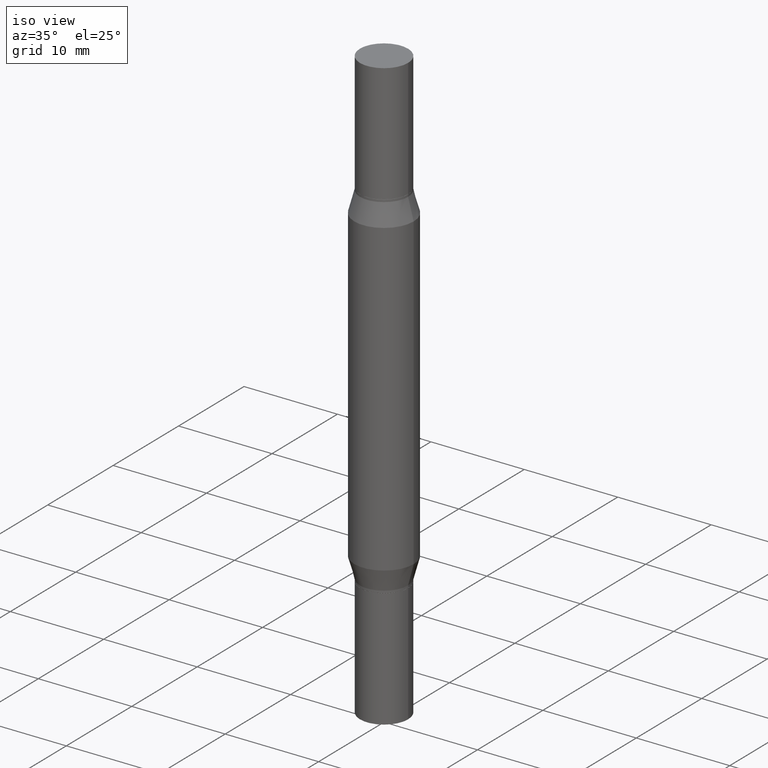
[diagram: clean part render]
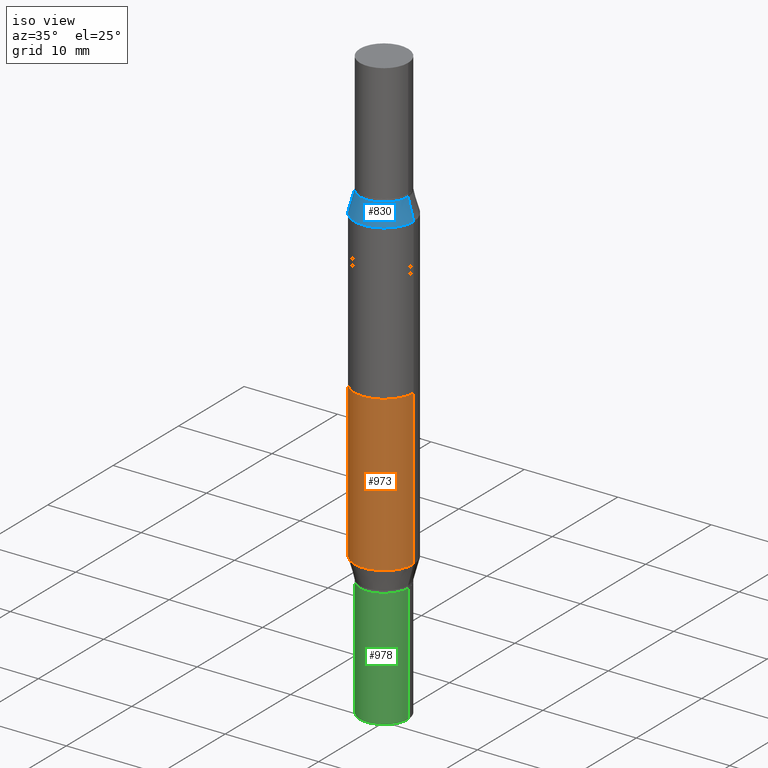
[diagram: same view with three faces highlighted in distinct colors, each labeled with its STEP entity id]
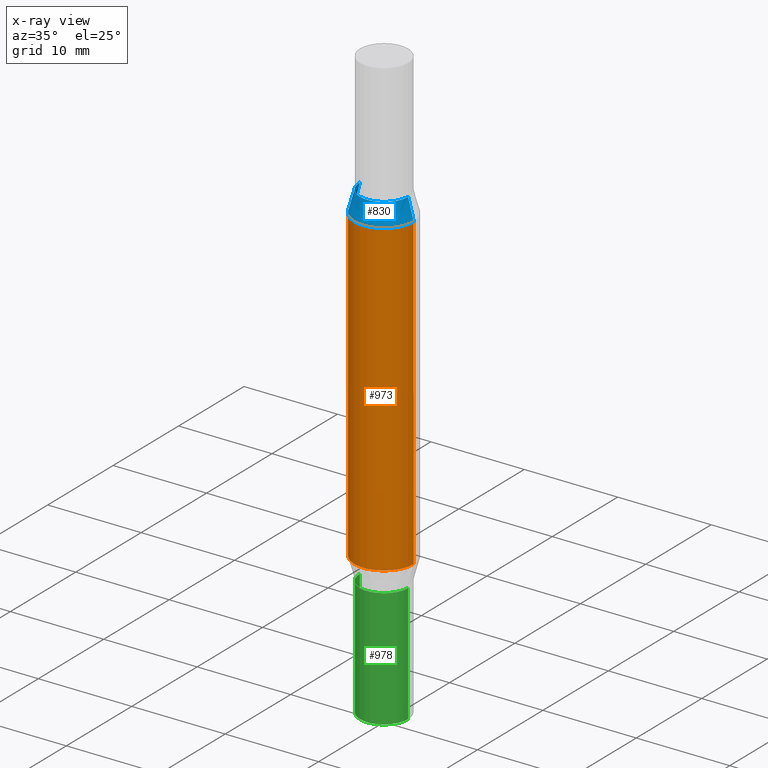
[diagram: x-ray of the same camera — body ghosted, the three highlighted faces saturated]
A machine part, iso view with three faces highlighted in distinct colors.
The next image is the same camera in x-ray (body ghosted, the three faces saturated) — at least one of them is partly hidden behind the body in this view.
Their STEP definitions:

[orange] entity #973 — the highlighted cylindrical surface (edge-blend (fillet) strip) has radius 3.175 mm, axis along (-0, -0, -1).
#2 = CARTESIAN_POINT ( 'NONE',  ( 0.1250000000000000000, -9.601978376966118441E-15, -2.499999999999999556 ) ) ;
#8 = DIRECTION ( 'NONE',  ( 1.000000000000000000, -6.982962677686262766E-15, 0.000000000000000000 ) ) ;
#10 = VECTOR ( 'NONE', #215, 39.37007874015748143 ) ;
#27 = AXIS2_PLACEMENT_3D ( 'NONE', #229, #835, #8 ) ;
#66 = DIRECTION ( 'NONE',  ( 1.000000000000000000, -6.982962677686266711E-15, 0.000000000000000000 ) ) ;
#95 = EDGE_CURVE ( 'NONE', #777, #134, #683, .T. ) ;
#134 = VERTEX_POINT ( 'NONE', #462 ) ;
#152 = AXIS2_PLACEMENT_3D ( 'NONE', #507, #735, #66 ) ;
#169 = DIRECTION ( 'NONE',  ( -2.445468806185136877E-29, -3.491805094961123683E-15, -1.000000000000000000 ) ) ;
#175 = EDGE_LOOP ( 'NONE', ( #351, #379, #371, #704 ) ) ;
#215 = DIRECTION ( 'NONE',  ( -2.445468806185136877E-29, -3.491805094961123683E-15, -1.000000000000000000 ) ) ;
#229 = CARTESIAN_POINT ( 'NONE',  ( 0.000000000000000000, -8.729108042255335103E-15, -2.499999999999999556 ) ) ;
#251 = LINE ( 'NONE', #322, #366 ) ;
#322 = CARTESIAN_POINT ( 'NONE',  ( -0.1250000000000000000, -7.871545792533893657E-15, -2.499999999999999556 ) ) ;
#324 = CIRCLE ( 'NONE', #670, 0.1250000000000000000 ) ;
#351 = ORIENTED_EDGE ( 'NONE', *, *, #95, .F. ) ;
#366 = VECTOR ( 'NONE', #169, 39.37007874015748143 ) ;
#371 = ORIENTED_EDGE ( 'NONE', *, *, #846, .T. ) ;
#379 = ORIENTED_EDGE ( 'NONE', *, *, #663, .T. ) ;
#425 = EDGE_CURVE ( 'NONE', #134, #561, #749, .T. ) ;
#462 = CARTESIAN_POINT ( 'NONE',  ( 0.1250000000000000000, -2.958877117868543782E-15, -0.5975165914374901410 ) ) ;
#507 = CARTESIAN_POINT ( 'NONE',  ( 4.652463829924389037E-29, -2.086006783157758077E-15, -0.5975165914374901410 ) ) ;
#518 = CYLINDRICAL_SURFACE ( 'NONE', #27, 0.1250000000000000000 ) ;
#530 = VERTEX_POINT ( 'NONE', #620 ) ;
#561 = VERTEX_POINT ( 'NONE', #752 ) ;
#578 = DIRECTION ( 'NONE',  ( -2.445468806185136597E-29, 3.491481338843145583E-15, 1.000000000000000000 ) ) ;
#620 = CARTESIAN_POINT ( 'NONE',  ( -0.1250000000000000000, -3.506789423832489448E-15, -1.902483408562509304 ) ) ;
#650 = DIRECTION ( 'NONE',  ( 1.000000000000000000, -6.982962677686270655E-15, 0.000000000000000000 ) ) ;
#657 = CARTESIAN_POINT ( 'NONE',  ( 4.652463829924389037E-29, -6.642485318454700807E-15, -1.902483408562509304 ) ) ;
#663 = EDGE_CURVE ( 'NONE', #777, #530, #251, .T. ) ;
#670 = AXIS2_PLACEMENT_3D ( 'NONE', #657, #578, #650 ) ;
#680 = FACE_OUTER_BOUND ( 'NONE', #175, .T. ) ;
#683 = CIRCLE ( 'NONE', #152, 0.1250000000000000000 ) ;
#704 = ORIENTED_EDGE ( 'NONE', *, *, #425, .F. ) ;
#735 = DIRECTION ( 'NONE',  ( 2.445468806185136597E-29, 3.491805094961124077E-15, 1.000000000000000000 ) ) ;
#749 = LINE ( 'NONE', #2, #10 ) ;
#752 = CARTESIAN_POINT ( 'NONE',  ( 0.1250000000000000000, -7.515355653165484935E-15, -1.902483408562509304 ) ) ;
#777 = VERTEX_POINT ( 'NONE', #945 ) ;
#835 = DIRECTION ( 'NONE',  ( -2.445468806185136597E-29, -3.491805094961124077E-15, -1.000000000000000000 ) ) ;
#846 = EDGE_CURVE ( 'NONE', #530, #561, #324, .T. ) ;
#945 = CARTESIAN_POINT ( 'NONE',  ( -0.1250000000000000000, -1.228444533436318603E-15, -0.5975165914374901410 ) ) ;
#973 = ADVANCED_FACE ( 'NONE', ( #680 ), #518, .T. ) ;

[blue] entity #830 — the highlighted conical surface has half-angle 15 deg.
#33 = DIRECTION ( 'NONE',  ( 2.445468806185136597E-29, 3.491805094961124077E-15, 1.000000000000000000 ) ) ;
#48 = CONICAL_SURFACE ( 'NONE', #305, 0.1015499999999997377, 0.2617993877991507401 ) ;
#63 = VECTOR ( 'NONE', #64, 39.37007874015748854 ) ;
#64 = DIRECTION ( 'NONE',  ( 0.2588190451025219607, -5.180148453816008779E-15, -0.9659258262890678681 ) ) ;
#93 = CARTESIAN_POINT ( 'NONE',  ( 0.1015499999999997377, -2.489535763201737721E-15, -0.5099999999999994538 ) ) ;
#130 = EDGE_CURVE ( 'NONE', #767, #396, #851, .T. ) ;
#167 = VERTEX_POINT ( 'NONE', #337 ) ;
#195 = CIRCLE ( 'NONE', #272, 0.1250000000000000000 ) ;
#216 = LINE ( 'NONE', #517, #63 ) ;
#217 = EDGE_CURVE ( 'NONE', #167, #423, #195, .T. ) ;
#234 = EDGE_CURVE ( 'NONE', #767, #167, #552, .T. ) ;
#237 = VECTOR ( 'NONE', #562, 39.37007874015748854 ) ;
#245 = DIRECTION ( 'NONE',  ( 1.000000000000000000, -6.982962677686268288E-15, 0.000000000000000000 ) ) ;
#261 = CARTESIAN_POINT ( 'NONE',  ( -0.1015499999999997377, -1.083732331609001856E-15, -0.5099999999999994538 ) ) ;
#272 = AXIS2_PLACEMENT_3D ( 'NONE', #627, #962, #878 ) ;
#305 = AXIS2_PLACEMENT_3D ( 'NONE', #874, #869, #245 ) ;
#337 = CARTESIAN_POINT ( 'NONE',  ( -0.1250000000000000000, -1.228444533436318603E-15, -0.5975165914374901410 ) ) ;
#344 = EDGE_CURVE ( 'NONE', #396, #423, #216, .T. ) ;
#347 = ORIENTED_EDGE ( 'NONE', *, *, #344, .F. ) ;
#396 = VERTEX_POINT ( 'NONE', #93 ) ;
#423 = VERTEX_POINT ( 'NONE', #743 ) ;
#433 = ORIENTED_EDGE ( 'NONE', *, *, #130, .F. ) ;
#473 = EDGE_LOOP ( 'NONE', ( #433, #932, #661, #347 ) ) ;
#517 = CARTESIAN_POINT ( 'NONE',  ( 0.1015499999999997377, -2.489535763201737721E-15, -0.5099999999999994538 ) ) ;
#552 = LINE ( 'NONE', #261, #237 ) ;
#562 = DIRECTION ( 'NONE',  ( -0.2588190451025219607, -1.597197180879709001E-15, -0.9659258262890678681 ) ) ;
#621 = FACE_OUTER_BOUND ( 'NONE', #473, .T. ) ;
#627 = CARTESIAN_POINT ( 'NONE',  ( 4.652463829924389037E-29, -2.086006783157758077E-15, -0.5975165914374901410 ) ) ;
#661 = ORIENTED_EDGE ( 'NONE', *, *, #217, .T. ) ;
#743 = CARTESIAN_POINT ( 'NONE',  ( 0.1250000000000000000, -2.958877117868543782E-15, -0.5975165914374901410 ) ) ;
#767 = VERTEX_POINT ( 'NONE', #961 ) ;
#823 = AXIS2_PLACEMENT_3D ( 'NONE', #864, #33, #933 ) ;
#830 = ADVANCED_FACE ( 'NONE', ( #621 ), #48, .T. ) ;
#851 = CIRCLE ( 'NONE', #823, 0.1015499999999997377 ) ;
#864 = CARTESIAN_POINT ( 'NONE',  ( 4.866482924308422209E-29, -1.780415903282698911E-15, -0.5099999999999994538 ) ) ;
#869 = DIRECTION ( 'NONE',  ( -2.445468806185136597E-29, -3.491805094961124077E-15, -1.000000000000000000 ) ) ;
#874 = CARTESIAN_POINT ( 'NONE',  ( 4.866482924308422209E-29, -1.780415903282698911E-15, -0.5099999999999994538 ) ) ;
#878 = DIRECTION ( 'NONE',  ( 1.000000000000000000, -6.982962677686266711E-15, 0.000000000000000000 ) ) ;
#932 = ORIENTED_EDGE ( 'NONE', *, *, #234, .T. ) ;
#933 = DIRECTION ( 'NONE',  ( 1.000000000000000000, -6.982962677686268288E-15, 0.000000000000000000 ) ) ;
#961 = CARTESIAN_POINT ( 'NONE',  ( -0.1015499999999997377, -1.067146257407934882E-15, -0.5099999999999994538 ) ) ;
#962 = DIRECTION ( 'NONE',  ( 2.445468806185136597E-29, 3.491805094961124077E-15, 1.000000000000000000 ) ) ;

[green] entity #978 — the highlighted cylindrical surface (edge-blend (fillet) strip) has radius 2.5794 mm, axis along (-0, 0, 1).
#38 = VERTEX_POINT ( 'NONE', #918 ) ;
#55 = DIRECTION ( 'NONE',  ( -2.445468806185136597E-29, 3.491481338843145583E-15, 1.000000000000000000 ) ) ;
#83 = DIRECTION ( 'NONE',  ( -2.445468806185136877E-29, 3.491481338843145188E-15, 1.000000000000000000 ) ) ;
#87 = AXIS2_PLACEMENT_3D ( 'NONE', #269, #55, #727 ) ;
#106 = VECTOR ( 'NONE', #483, 39.37007874015748143 ) ;
#127 = CARTESIAN_POINT ( 'NONE',  ( 6.113672015462842613E-29, -8.728703347107864943E-15, -2.500000000000000000 ) ) ;
#155 = ORIENTED_EDGE ( 'NONE', *, *, #285, .F. ) ;
#166 = EDGE_CURVE ( 'NONE', #533, #38, #550, .T. ) ;
#184 = LINE ( 'NONE', #707, #106 ) ;
#248 = VERTEX_POINT ( 'NONE', #938 ) ;
#259 = EDGE_CURVE ( 'NONE', #759, #248, #414, .T. ) ;
#269 = CARTESIAN_POINT ( 'NONE',  ( 4.890937612370273194E-29, -6.982962677686291165E-15, -2.000000000000000000 ) ) ;
#276 = DIRECTION ( 'NONE',  ( 1.000000000000000000, -6.982962677686259611E-15, 0.000000000000000000 ) ) ;
#285 = EDGE_CURVE ( 'NONE', #533, #759, #184, .T. ) ;
#293 = CYLINDRICAL_SURFACE ( 'NONE', #554, 0.1015500000000000708 ) ;
#376 = AXIS2_PLACEMENT_3D ( 'NONE', #127, #875, #276 ) ;
#407 = EDGE_LOOP ( 'NONE', ( #155, #546, #508, #528 ) ) ;
#414 = CIRCLE ( 'NONE', #87, 0.1015500000000000708 ) ;
#483 = DIRECTION ( 'NONE',  ( -2.445468806185136877E-29, 3.491481338843145188E-15, 1.000000000000000000 ) ) ;
#508 = ORIENTED_EDGE ( 'NONE', *, *, #934, .T. ) ;
#528 = ORIENTED_EDGE ( 'NONE', *, *, #259, .F. ) ;
#533 = VERTEX_POINT ( 'NONE', #659 ) ;
#546 = ORIENTED_EDGE ( 'NONE', *, *, #166, .T. ) ;
#550 = CIRCLE ( 'NONE', #376, 0.1015500000000000708 ) ;
#554 = AXIS2_PLACEMENT_3D ( 'NONE', #586, #843, #905 ) ;
#586 = CARTESIAN_POINT ( 'NONE',  ( 0.000000000000000000, 0.000000000000000000, 0.000000000000000000 ) ) ;
#592 = LINE ( 'NONE', #849, #926 ) ;
#604 = FACE_OUTER_BOUND ( 'NONE', #407, .T. ) ;
#659 = CARTESIAN_POINT ( 'NONE',  ( -0.1015500000000000708, -7.134276864232696503E-15, -2.500000000000000000 ) ) ;
#707 = CARTESIAN_POINT ( 'NONE',  ( -0.1015500000000000708, 7.215561481643822416E-16, -4.995178584153860605E-30 ) ) ;
#727 = DIRECTION ( 'NONE',  ( 1.000000000000000000, -6.982962677686269866E-15, 0.000000000000000000 ) ) ;
#759 = VERTEX_POINT ( 'NONE', #807 ) ;
#807 = CARTESIAN_POINT ( 'NONE',  ( -0.1015500000000000708, -7.134276864232696503E-15, -2.000000000000000000 ) ) ;
#843 = DIRECTION ( 'NONE',  ( -2.445468806185136597E-29, 3.491481338843145583E-15, 1.000000000000000000 ) ) ;
#849 = CARTESIAN_POINT ( 'NONE',  ( 0.1015500000000000708, -7.091198599190408807E-16, 4.951757515820776576E-30 ) ) ;
#875 = DIRECTION ( 'NONE',  ( -2.445468806185136597E-29, 3.491481338843145583E-15, 1.000000000000000000 ) ) ;
#905 = DIRECTION ( 'NONE',  ( 1.000000000000000000, -6.982962677686266711E-15, 4.876176775795936353E-29 ) ) ;
#918 = CARTESIAN_POINT ( 'NONE',  ( 0.1015500000000000708, -9.437823207026904147E-15, -2.500000000000000000 ) ) ;
#926 = VECTOR ( 'NONE', #83, 39.37007874015748143 ) ;
#934 = EDGE_CURVE ( 'NONE', #38, #248, #592, .T. ) ;
#938 = CARTESIAN_POINT ( 'NONE',  ( 0.1015500000000000708, -7.692082537605332736E-15, -2.000000000000000000 ) ) ;
#978 = ADVANCED_FACE ( 'NONE', ( #604 ), #293, .T. ) ;